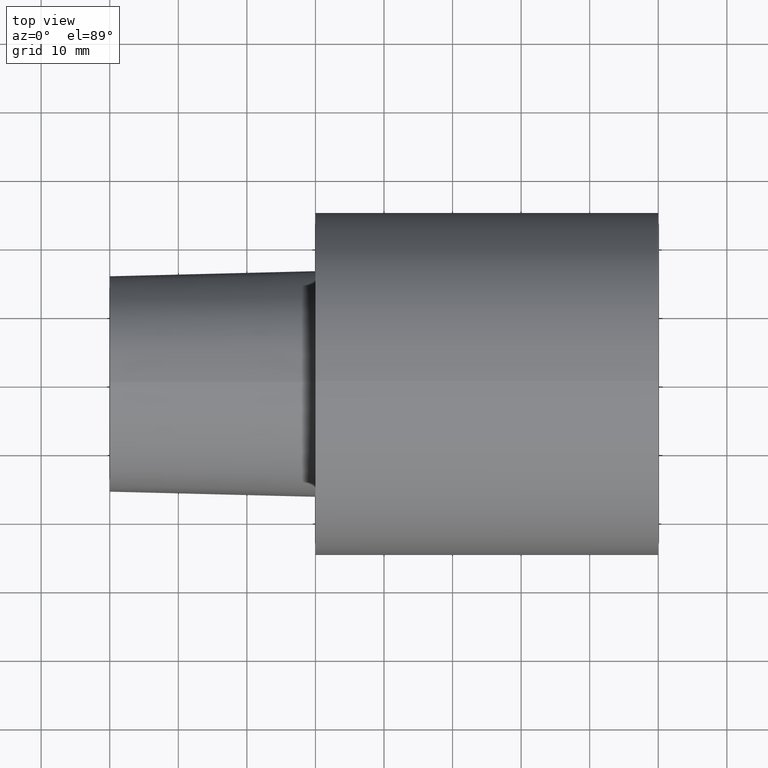
[diagram: clean part render]
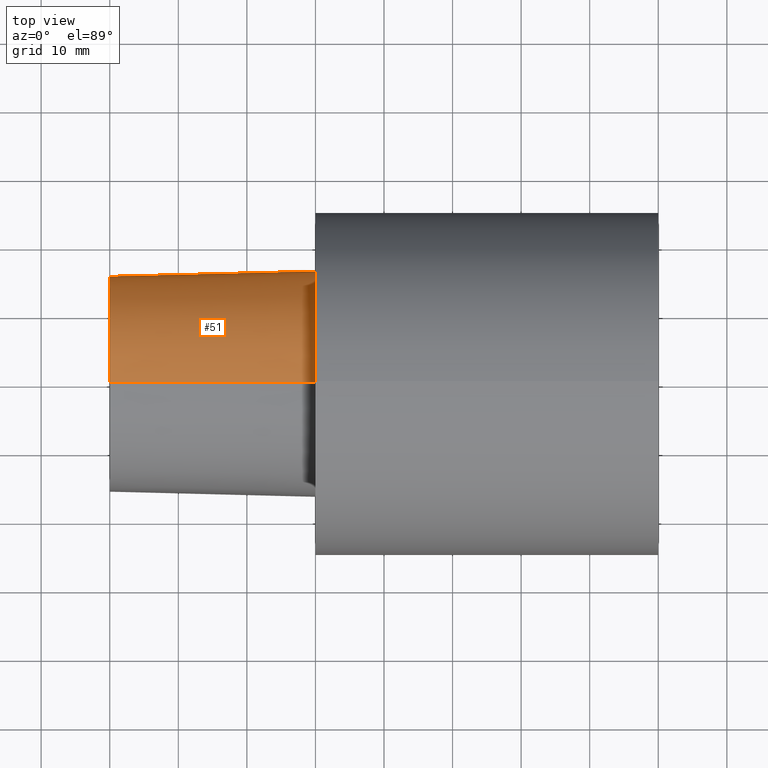
[diagram: same view with one face highlighted and labeled with its STEP entity id]
A machine part, top view. The second image highlights one B-rep face of the part: STEP entity #51.
In plain terms, the highlighted conical surface has half-angle 1.432 deg.
Its self-contained STEP definition (entity closure, byte-faithful):
#21 = CARTESIAN_POINT ( 'NONE',  ( 0.000000000000000000, 0.000000000000000000, -16.45500658257258664 ) ) ;
#26 = AXIS2_PLACEMENT_3D ( 'NONE', #229, #192, #49 ) ;
#31 = EDGE_LOOP ( 'NONE', ( #148, #104, #107, #95 ) ) ;
#33 = FACE_OUTER_BOUND ( 'NONE', #31, .T. ) ;
#38 = EDGE_CURVE ( 'NONE', #166, #53, #232, .T. ) ;
#49 = DIRECTION ( 'NONE',  ( 0.000000000000000000, 0.000000000000000000, 1.000000000000000000 ) ) ;
#51 = ADVANCED_FACE ( 'NONE', ( #33 ), #171, .T. ) ;
#53 = VERTEX_POINT ( 'NONE', #149 ) ;
#58 = CARTESIAN_POINT ( 'NONE',  ( -29.99999996940000102, 0.000000000000000000, -15.70494056296217700 ) ) ;
#64 = EDGE_CURVE ( 'NONE', #53, #170, #65, .T. ) ;
#65 = CIRCLE ( 'NONE', #167, 16.45500658257258664 ) ;
#69 = DIRECTION ( 'NONE',  ( 0.000000000000000000, 0.000000000000000000, -1.000000000000000000 ) ) ;
#90 = AXIS2_PLACEMENT_3D ( 'NONE', #133, #216, #69 ) ;
#92 = DIRECTION ( 'NONE',  ( -1.000000000000000000, 0.000000000000000000, 0.000000000000000000 ) ) ;
#95 = ORIENTED_EDGE ( 'NONE', *, *, #249, .F. ) ;
#98 = EDGE_CURVE ( 'NONE', #166, #207, #235, .T. ) ;
#101 = VECTOR ( 'NONE', #150, 999.9999999999998863 ) ;
#104 = ORIENTED_EDGE ( 'NONE', *, *, #38, .T. ) ;
#107 = ORIENTED_EDGE ( 'NONE', *, *, #64, .T. ) ;
#110 = CARTESIAN_POINT ( 'NONE',  ( 0.000000000000000000, 0.000000000000000000, 0.000000000000000000 ) ) ;
#133 = CARTESIAN_POINT ( 'NONE',  ( 0.000000000000000000, 0.000000000000000000, 0.000000000000000000 ) ) ;
#148 = ORIENTED_EDGE ( 'NONE', *, *, #98, .F. ) ;
#149 = CARTESIAN_POINT ( 'NONE',  ( 0.000000000000000000, 2.015157114129614578E-15, 16.45500658257258664 ) ) ;
#150 = DIRECTION ( 'NONE',  ( 0.9996875914402667540, 3.060929943787468651E-18, 0.02499438977767799372 ) ) ;
#160 = CARTESIAN_POINT ( 'NONE',  ( -29.99999996940000102, 1.969228816626358703E-15, 15.70494056296217700 ) ) ;
#166 = VERTEX_POINT ( 'NONE', #160 ) ;
#167 = AXIS2_PLACEMENT_3D ( 'NONE', #110, #92, #195 ) ;
#170 = VERTEX_POINT ( 'NONE', #21 ) ;
#171 = CONICAL_SURFACE ( 'NONE', #90, 16.45500658257258664, 0.02499699292341668252 ) ;
#176 = LINE ( 'NONE', #238, #194 ) ;
#192 = DIRECTION ( 'NONE',  ( -1.000000000000000000, 0.000000000000000000, 0.000000000000000000 ) ) ;
#194 = VECTOR ( 'NONE', #237, 999.9999999999998863 ) ;
#195 = DIRECTION ( 'NONE',  ( 0.000000000000000000, 0.000000000000000000, 1.000000000000000000 ) ) ;
#207 = VERTEX_POINT ( 'NONE', #58 ) ;
#212 = CARTESIAN_POINT ( 'NONE',  ( 0.000000000000000000, 2.015157114129614578E-15, 16.45500658257258664 ) ) ;
#216 = DIRECTION ( 'NONE',  ( 1.000000000000000000, 0.000000000000000000, 0.000000000000000000 ) ) ;
#229 = CARTESIAN_POINT ( 'NONE',  ( -29.99999996940000102, 0.000000000000000000, 0.000000000000000000 ) ) ;
#232 = LINE ( 'NONE', #212, #101 ) ;
#235 = CIRCLE ( 'NONE', #26, 15.70494056296217700 ) ;
#237 = DIRECTION ( 'NONE',  ( 0.9996875914402667540, 0.000000000000000000, -0.02499438977767799372 ) ) ;
#238 = CARTESIAN_POINT ( 'NONE',  ( 0.000000000000000000, 0.000000000000000000, -16.45500658257258664 ) ) ;
#249 = EDGE_CURVE ( 'NONE', #207, #170, #176, .T. ) ;